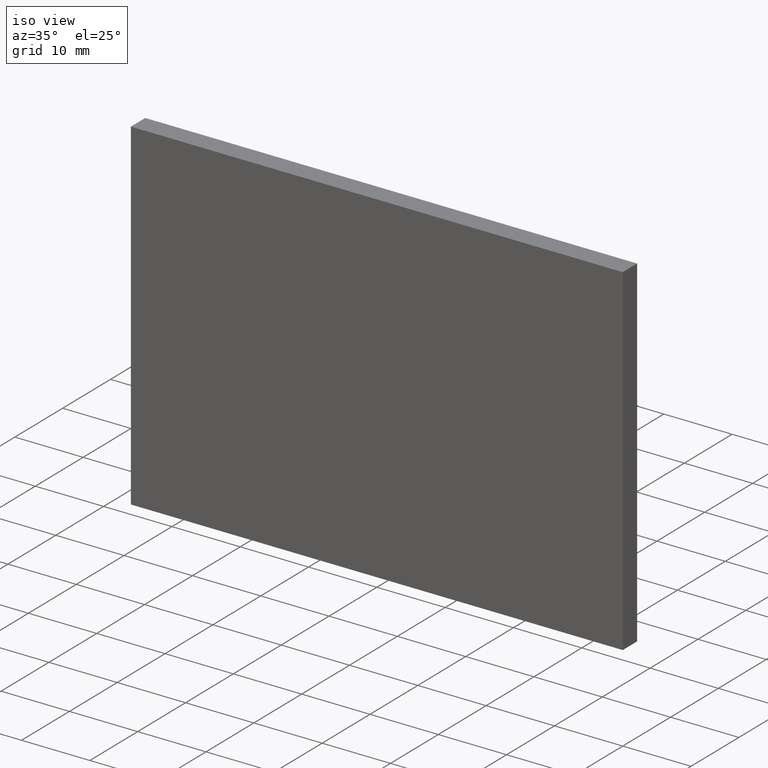
[diagram: clean part render]
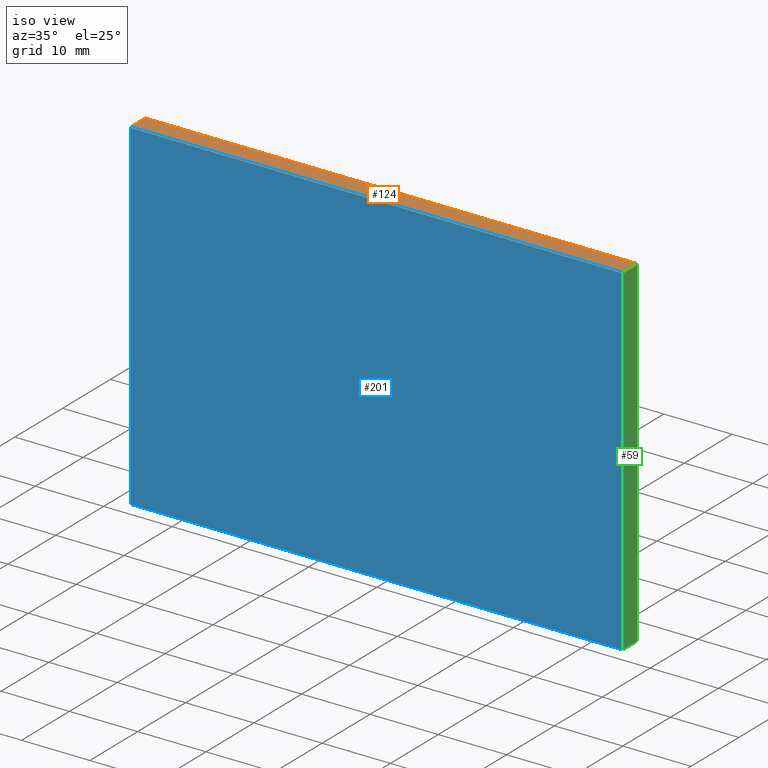
[diagram: same view with three faces highlighted in distinct colors, each labeled with its STEP entity id]
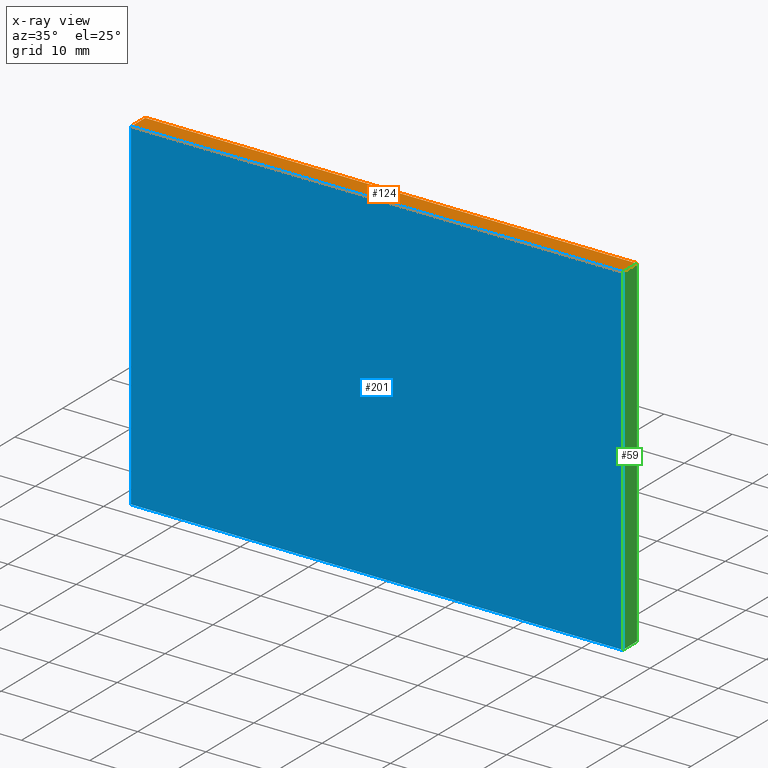
[diagram: x-ray of the same camera — body ghosted, the three highlighted faces saturated]
A machine part, iso view with three faces highlighted in distinct colors.
The next image is the same camera in x-ray (body ghosted, the three faces saturated) — at least one of them is partly hidden behind the body in this view.
Their STEP definitions:

[orange] entity #124 — the highlighted planar face has unit normal (0, 0, -1).
#1 = VERTEX_POINT ( 'NONE', #161 ) ;
#4 = VECTOR ( 'NONE', #35, 1000.000000000000000 ) ;
#9 = LINE ( 'NONE', #167, #190 ) ;
#20 = LINE ( 'NONE', #151, #4 ) ;
#27 = VECTOR ( 'NONE', #152, 1000.000000000000000 ) ;
#34 = CARTESIAN_POINT ( 'NONE',  ( -36.00000000000000000, 3.000000000000000000, 25.00000000000000000 ) ) ;
#35 = DIRECTION ( 'NONE',  ( -0.0000000000000000000, -1.000000000000000000, -0.0000000000000000000 ) ) ;
#37 = EDGE_CURVE ( 'NONE', #187, #1, #177, .T. ) ;
#39 = VECTOR ( 'NONE', #95, 1000.000000000000000 ) ;
#42 = EDGE_CURVE ( 'NONE', #133, #1, #20, .T. ) ;
#53 = VERTEX_POINT ( 'NONE', #145 ) ;
#61 = LINE ( 'NONE', #134, #39 ) ;
#67 = DIRECTION ( 'NONE',  ( 1.000000000000000000, 0.0000000000000000000, 0.0000000000000000000 ) ) ;
#75 = CARTESIAN_POINT ( 'NONE',  ( -36.00000000000000000, 0.0000000000000000000, 25.00000000000000000 ) ) ;
#89 = CARTESIAN_POINT ( 'NONE',  ( 36.00000000000000000, 3.000000000000000000, 25.00000000000000000 ) ) ;
#92 = AXIS2_PLACEMENT_3D ( 'NONE', #34, #196, #100 ) ;
#93 = EDGE_LOOP ( 'NONE', ( #169, #135, #129, #159 ) ) ;
#95 = DIRECTION ( 'NONE',  ( -0.0000000000000000000, -1.000000000000000000, -0.0000000000000000000 ) ) ;
#100 = DIRECTION ( 'NONE',  ( -1.000000000000000000, 0.0000000000000000000, -0.0000000000000000000 ) ) ;
#116 = FACE_OUTER_BOUND ( 'NONE', #93, .T. ) ;
#121 = PLANE ( 'NONE',  #92 ) ;
#124 = ADVANCED_FACE ( 'NONE', ( #116 ), #121, .F. ) ;
#129 = ORIENTED_EDGE ( 'NONE', *, *, #150, .F. ) ;
#133 = VERTEX_POINT ( 'NONE', #89 ) ;
#134 = CARTESIAN_POINT ( 'NONE',  ( -36.00000000000000000, 3.000000000000000000, 25.00000000000000000 ) ) ;
#135 = ORIENTED_EDGE ( 'NONE', *, *, #42, .F. ) ;
#145 = CARTESIAN_POINT ( 'NONE',  ( -36.00000000000000000, 3.000000000000000000, 25.00000000000000000 ) ) ;
#150 = EDGE_CURVE ( 'NONE', #53, #133, #9, .T. ) ;
#151 = CARTESIAN_POINT ( 'NONE',  ( 36.00000000000000000, 3.000000000000000000, 25.00000000000000000 ) ) ;
#152 = DIRECTION ( 'NONE',  ( 1.000000000000000000, 0.0000000000000000000, 0.0000000000000000000 ) ) ;
#159 = ORIENTED_EDGE ( 'NONE', *, *, #170, .T. ) ;
#160 = CARTESIAN_POINT ( 'NONE',  ( -36.00000000000000000, 0.0000000000000000000, 25.00000000000000000 ) ) ;
#161 = CARTESIAN_POINT ( 'NONE',  ( 36.00000000000000000, 0.0000000000000000000, 25.00000000000000000 ) ) ;
#167 = CARTESIAN_POINT ( 'NONE',  ( -36.00000000000000000, 3.000000000000000000, 25.00000000000000000 ) ) ;
#169 = ORIENTED_EDGE ( 'NONE', *, *, #37, .T. ) ;
#170 = EDGE_CURVE ( 'NONE', #53, #187, #61, .T. ) ;
#177 = LINE ( 'NONE', #160, #27 ) ;
#187 = VERTEX_POINT ( 'NONE', #75 ) ;
#190 = VECTOR ( 'NONE', #67, 1000.000000000000000 ) ;
#196 = DIRECTION ( 'NONE',  ( 0.0000000000000000000, 0.0000000000000000000, -1.000000000000000000 ) ) ;

[blue] entity #201 — the highlighted planar face has unit normal (0, 1, 0).
#1 = VERTEX_POINT ( 'NONE', #161 ) ;
#2 = LINE ( 'NONE', #131, #11 ) ;
#8 = ORIENTED_EDGE ( 'NONE', *, *, #25, .F. ) ;
#11 = VECTOR ( 'NONE', #138, 1000.000000000000000 ) ;
#12 = EDGE_CURVE ( 'NONE', #72, #187, #98, .T. ) ;
#21 = VECTOR ( 'NONE', #149, 1000.000000000000000 ) ;
#25 = EDGE_CURVE ( 'NONE', #1, #165, #2, .T. ) ;
#27 = VECTOR ( 'NONE', #152, 1000.000000000000000 ) ;
#37 = EDGE_CURVE ( 'NONE', #187, #1, #177, .T. ) ;
#72 = VERTEX_POINT ( 'NONE', #137 ) ;
#75 = CARTESIAN_POINT ( 'NONE',  ( -36.00000000000000000, 0.0000000000000000000, 25.00000000000000000 ) ) ;
#76 = VECTOR ( 'NONE', #199, 1000.000000000000000 ) ;
#84 = DIRECTION ( 'NONE',  ( 0.0000000000000000000, -0.0000000000000000000, 1.000000000000000000 ) ) ;
#91 = CARTESIAN_POINT ( 'NONE',  ( 0.0000000000000000000, 0.0000000000000000000, 0.0000000000000000000 ) ) ;
#98 = LINE ( 'NONE', #146, #21 ) ;
#99 = ORIENTED_EDGE ( 'NONE', *, *, #37, .F. ) ;
#103 = LINE ( 'NONE', #184, #76 ) ;
#107 = ORIENTED_EDGE ( 'NONE', *, *, #12, .F. ) ;
#117 = FACE_OUTER_BOUND ( 'NONE', #156, .T. ) ;
#126 = ORIENTED_EDGE ( 'NONE', *, *, #179, .F. ) ;
#131 = CARTESIAN_POINT ( 'NONE',  ( 35.99999999999999300, 0.0000000000000000000, -25.00000000000000000 ) ) ;
#137 = CARTESIAN_POINT ( 'NONE',  ( -36.00000000000000700, 0.0000000000000000000, -25.00000000000000000 ) ) ;
#138 = DIRECTION ( 'NONE',  ( -1.387778780781445700E-016, -0.0000000000000000000, -1.000000000000000000 ) ) ;
#146 = CARTESIAN_POINT ( 'NONE',  ( -36.00000000000000700, 0.0000000000000000000, -25.00000000000000000 ) ) ;
#149 = DIRECTION ( 'NONE',  ( 1.387778780781445700E-016, 0.0000000000000000000, 1.000000000000000000 ) ) ;
#152 = DIRECTION ( 'NONE',  ( 1.000000000000000000, 0.0000000000000000000, 0.0000000000000000000 ) ) ;
#153 = CARTESIAN_POINT ( 'NONE',  ( 35.99999999999999300, 0.0000000000000000000, -25.00000000000000000 ) ) ;
#156 = EDGE_LOOP ( 'NONE', ( #8, #99, #107, #126 ) ) ;
#160 = CARTESIAN_POINT ( 'NONE',  ( -36.00000000000000000, 0.0000000000000000000, 25.00000000000000000 ) ) ;
#161 = CARTESIAN_POINT ( 'NONE',  ( 36.00000000000000000, 0.0000000000000000000, 25.00000000000000000 ) ) ;
#165 = VERTEX_POINT ( 'NONE', #153 ) ;
#177 = LINE ( 'NONE', #160, #27 ) ;
#178 = DIRECTION ( 'NONE',  ( 0.0000000000000000000, 1.000000000000000000, 0.0000000000000000000 ) ) ;
#179 = EDGE_CURVE ( 'NONE', #165, #72, #103, .T. ) ;
#184 = CARTESIAN_POINT ( 'NONE',  ( -36.00000000000000700, 0.0000000000000000000, -25.00000000000000000 ) ) ;
#187 = VERTEX_POINT ( 'NONE', #75 ) ;
#197 = PLANE ( 'NONE',  #202 ) ;
#199 = DIRECTION ( 'NONE',  ( -1.000000000000000000, -0.0000000000000000000, -0.0000000000000000000 ) ) ;
#201 = ADVANCED_FACE ( 'NONE', ( #117 ), #197, .F. ) ;
#202 = AXIS2_PLACEMENT_3D ( 'NONE', #91, #178, #84 ) ;

[green] entity #59 — the highlighted planar face has unit normal (-1, 0, 0).
#1 = VERTEX_POINT ( 'NONE', #161 ) ;
#2 = LINE ( 'NONE', #131, #11 ) ;
#4 = VECTOR ( 'NONE', #35, 1000.000000000000000 ) ;
#7 = DIRECTION ( 'NONE',  ( -1.000000000000000000, 0.0000000000000000000, 1.387778780781445400E-016 ) ) ;
#11 = VECTOR ( 'NONE', #138, 1000.000000000000000 ) ;
#13 = CARTESIAN_POINT ( 'NONE',  ( 35.99999999999999300, 3.000000000000000000, -25.00000000000000000 ) ) ;
#19 = ORIENTED_EDGE ( 'NONE', *, *, #97, .F. ) ;
#20 = LINE ( 'NONE', #151, #4 ) ;
#25 = EDGE_CURVE ( 'NONE', #1, #165, #2, .T. ) ;
#35 = DIRECTION ( 'NONE',  ( -0.0000000000000000000, -1.000000000000000000, -0.0000000000000000000 ) ) ;
#36 = FACE_OUTER_BOUND ( 'NONE', #55, .T. ) ;
#42 = EDGE_CURVE ( 'NONE', #133, #1, #20, .T. ) ;
#55 = EDGE_LOOP ( 'NONE', ( #123, #83, #19, #60 ) ) ;
#59 = ADVANCED_FACE ( 'NONE', ( #36 ), #106, .F. ) ;
#60 = ORIENTED_EDGE ( 'NONE', *, *, #42, .T. ) ;
#73 = AXIS2_PLACEMENT_3D ( 'NONE', #163, #7, #122 ) ;
#83 = ORIENTED_EDGE ( 'NONE', *, *, #192, .F. ) ;
#87 = VERTEX_POINT ( 'NONE', #114 ) ;
#89 = CARTESIAN_POINT ( 'NONE',  ( 36.00000000000000000, 3.000000000000000000, 25.00000000000000000 ) ) ;
#97 = EDGE_CURVE ( 'NONE', #133, #87, #198, .T. ) ;
#106 = PLANE ( 'NONE',  #73 ) ;
#109 = VECTOR ( 'NONE', #119, 1000.000000000000000 ) ;
#114 = CARTESIAN_POINT ( 'NONE',  ( 35.99999999999999300, 3.000000000000000000, -25.00000000000000000 ) ) ;
#119 = DIRECTION ( 'NONE',  ( -0.0000000000000000000, -1.000000000000000000, -0.0000000000000000000 ) ) ;
#122 = DIRECTION ( 'NONE',  ( 1.387778780781445400E-016, 0.0000000000000000000, 1.000000000000000000 ) ) ;
#123 = ORIENTED_EDGE ( 'NONE', *, *, #25, .T. ) ;
#128 = DIRECTION ( 'NONE',  ( -1.387778780781445700E-016, -0.0000000000000000000, -1.000000000000000000 ) ) ;
#131 = CARTESIAN_POINT ( 'NONE',  ( 35.99999999999999300, 0.0000000000000000000, -25.00000000000000000 ) ) ;
#133 = VERTEX_POINT ( 'NONE', #89 ) ;
#138 = DIRECTION ( 'NONE',  ( -1.387778780781445700E-016, -0.0000000000000000000, -1.000000000000000000 ) ) ;
#140 = LINE ( 'NONE', #13, #109 ) ;
#147 = VECTOR ( 'NONE', #128, 1000.000000000000000 ) ;
#151 = CARTESIAN_POINT ( 'NONE',  ( 36.00000000000000000, 3.000000000000000000, 25.00000000000000000 ) ) ;
#153 = CARTESIAN_POINT ( 'NONE',  ( 35.99999999999999300, 0.0000000000000000000, -25.00000000000000000 ) ) ;
#161 = CARTESIAN_POINT ( 'NONE',  ( 36.00000000000000000, 0.0000000000000000000, 25.00000000000000000 ) ) ;
#163 = CARTESIAN_POINT ( 'NONE',  ( 35.99999999999999300, 3.000000000000000000, -25.00000000000000000 ) ) ;
#165 = VERTEX_POINT ( 'NONE', #153 ) ;
#174 = CARTESIAN_POINT ( 'NONE',  ( 35.99999999999999300, 3.000000000000000000, -25.00000000000000000 ) ) ;
#192 = EDGE_CURVE ( 'NONE', #87, #165, #140, .T. ) ;
#198 = LINE ( 'NONE', #174, #147 ) ;